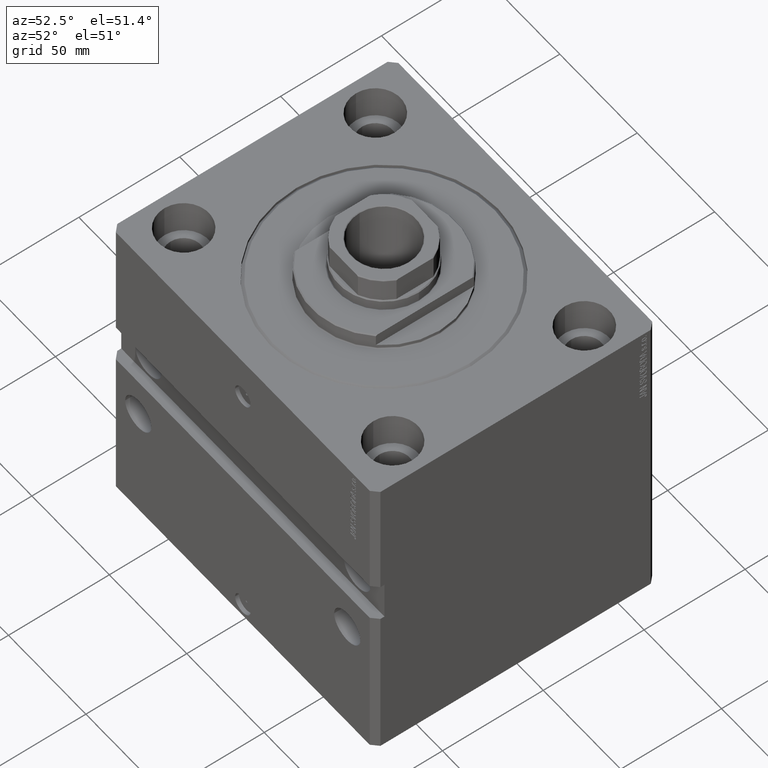
[diagram: clean part render]
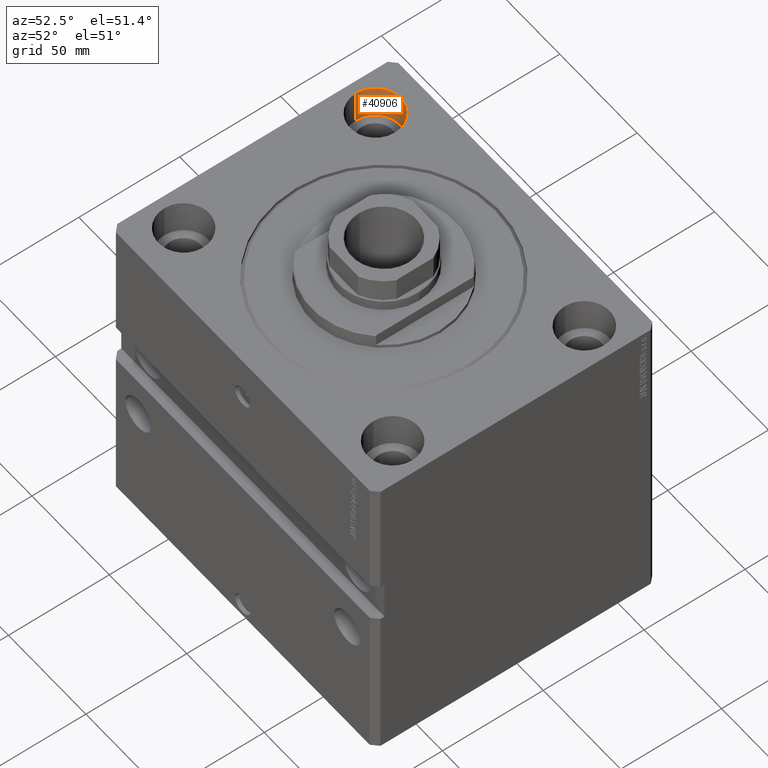
[diagram: same view with one face highlighted and labeled with its STEP entity id]
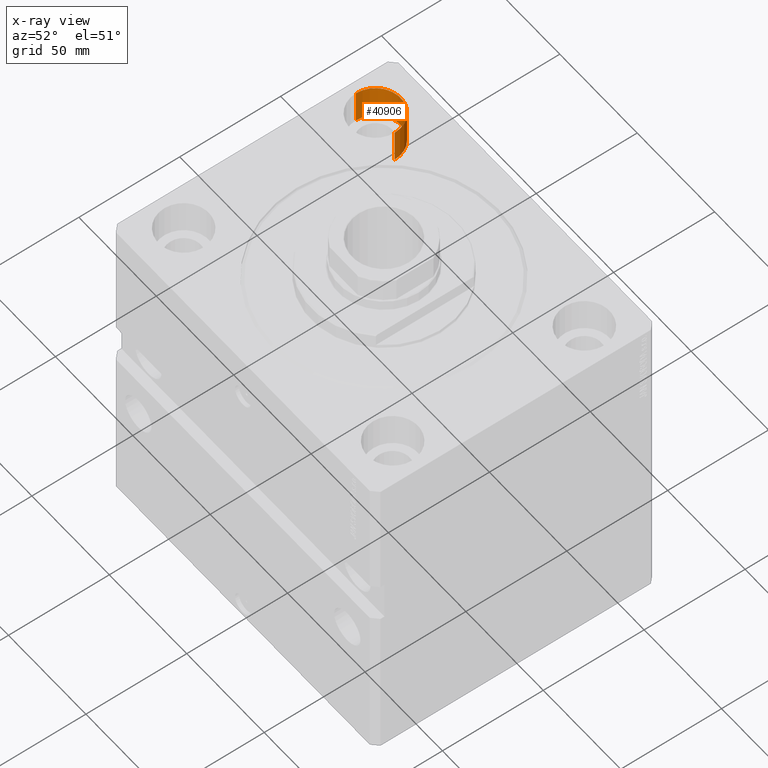
[diagram: x-ray of the same camera — body ghosted, the highlighted face saturated]
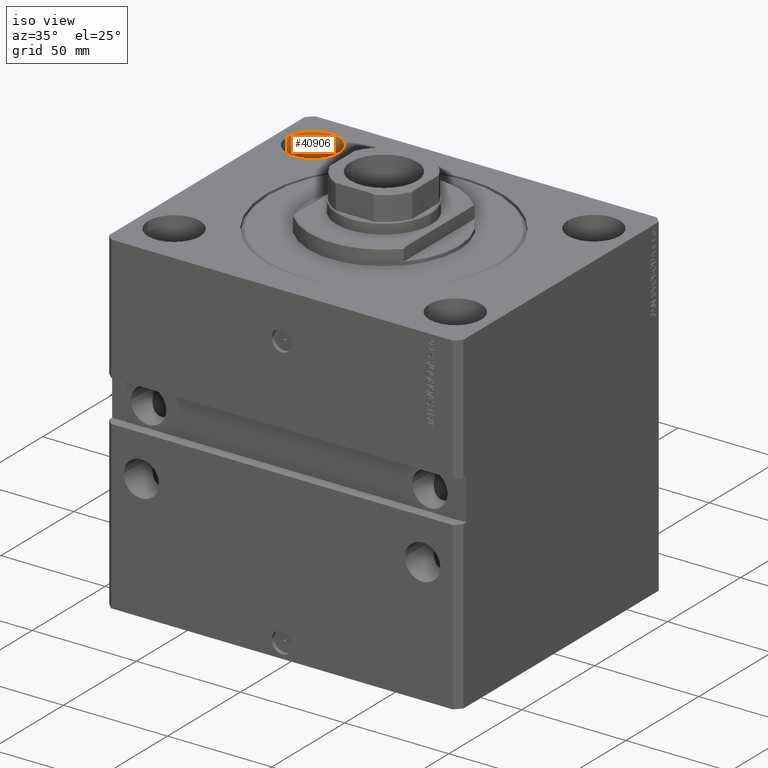
[diagram: same view with one face highlighted and labeled with its STEP entity id]
A machine part, auxiliary view. The second image highlights one B-rep face of the part: STEP entity #40906.
The next image is the same camera in x-ray: the body ghosted, the highlighted face saturated — about 0% of this face is hidden behind the body in this view.
A second angle (iso view) of the same face is appended — the face is thin or edge-on in the first view.
In plain terms, the highlighted cylindrical surface (edge-blend (fillet) strip) has radius 12.5 mm, axis along (0, 0, 1).
Its self-contained STEP definition (entity closure, byte-faithful):
#12 = DIRECTION ( 'NONE',  ( 0.000000000000000000, 0.000000000000000000, 1.000000000000000000 ) ) ;
#407 = VECTOR ( 'NONE', #35486, 1000.000000000000000 ) ;
#2018 = VERTEX_POINT ( 'NONE', #23377 ) ;
#3751 = CARTESIAN_POINT ( 'NONE',  ( -67.50000000000000000, 47.50000000000000000, -17.00000000000000000 ) ) ;
#6764 = EDGE_CURVE ( 'NONE', #18295, #2018, #32450, .T. ) ;
#8084 = EDGE_LOOP ( 'NONE', ( #30978, #16448, #8345, #26899 ) ) ;
#8345 = ORIENTED_EDGE ( 'NONE', *, *, #6764, .T. ) ;
#8869 = CARTESIAN_POINT ( 'NONE',  ( -80.00000000000000000, 47.50000000000000000, -17.00000000000000000 ) ) ;
#8947 = CARTESIAN_POINT ( 'NONE',  ( -80.00000000000000000, 47.50000000000000000, -17.00000000000000000 ) ) ;
#9671 = CARTESIAN_POINT ( 'NONE',  ( -80.00000000000000000, 47.50000000000000000, 0.000000000000000000 ) ) ;
#10636 = CARTESIAN_POINT ( 'NONE',  ( -67.50000000000000000, 47.50000000000000000, 0.000000000000000000 ) ) ;
#10859 = DIRECTION ( 'NONE',  ( 1.000000000000000000, 0.000000000000000000, 0.000000000000000000 ) ) ;
#13112 = EDGE_CURVE ( 'NONE', #46112, #33100, #37618, .T. ) ;
#14294 = DIRECTION ( 'NONE',  ( 1.000000000000000000, 0.000000000000000000, 0.000000000000000000 ) ) ;
#14806 = VECTOR ( 'NONE', #16808, 1000.000000000000000 ) ;
#16448 = ORIENTED_EDGE ( 'NONE', *, *, #26477, .F. ) ;
#16808 = DIRECTION ( 'NONE',  ( -0.000000000000000000, -0.000000000000000000, 1.000000000000000000 ) ) ;
#17645 = DIRECTION ( 'NONE',  ( 0.000000000000000000, 0.000000000000000000, 1.000000000000000000 ) ) ;
#17789 = CARTESIAN_POINT ( 'NONE',  ( -67.50000000000000000, 47.50000000000000000, -17.00000000000000000 ) ) ;
#18017 = DIRECTION ( 'NONE',  ( -0.000000000000000000, -0.000000000000000000, 1.000000000000000000 ) ) ;
#18295 = VERTEX_POINT ( 'NONE', #23816 ) ;
#18731 = AXIS2_PLACEMENT_3D ( 'NONE', #3751, #18017, #32286 ) ;
#21520 = CYLINDRICAL_SURFACE ( 'NONE', #18731, 12.49999999999999645 ) ;
#23377 = CARTESIAN_POINT ( 'NONE',  ( -55.00000000000000711, 47.50000000000000000, 0.000000000000000000 ) ) ;
#23816 = CARTESIAN_POINT ( 'NONE',  ( -55.00000000000000711, 47.50000000000000000, -17.00000000000000000 ) ) ;
#24085 = EDGE_CURVE ( 'NONE', #2018, #33100, #44815, .T. ) ;
#24685 = AXIS2_PLACEMENT_3D ( 'NONE', #10636, #17645, #10859 ) ;
#26477 = EDGE_CURVE ( 'NONE', #18295, #46112, #44563, .T. ) ;
#26653 = AXIS2_PLACEMENT_3D ( 'NONE', #17789, #12, #14294 ) ;
#26899 = ORIENTED_EDGE ( 'NONE', *, *, #24085, .T. ) ;
#30978 = ORIENTED_EDGE ( 'NONE', *, *, #13112, .F. ) ;
#32047 = FACE_OUTER_BOUND ( 'NONE', #8084, .T. ) ;
#32286 = DIRECTION ( 'NONE',  ( 1.000000000000000000, 0.000000000000000000, 0.000000000000000000 ) ) ;
#32450 = LINE ( 'NONE', #35727, #407 ) ;
#33100 = VERTEX_POINT ( 'NONE', #9671 ) ;
#35486 = DIRECTION ( 'NONE',  ( -0.000000000000000000, -0.000000000000000000, 1.000000000000000000 ) ) ;
#35727 = CARTESIAN_POINT ( 'NONE',  ( -55.00000000000000711, 47.50000000000000000, -17.00000000000000000 ) ) ;
#37618 = LINE ( 'NONE', #8869, #14806 ) ;
#40906 = ADVANCED_FACE ( 'NONE', ( #32047 ), #21520, .F. ) ;
#44563 = CIRCLE ( 'NONE', #26653, 12.49999999999999645 ) ;
#44815 = CIRCLE ( 'NONE', #24685, 12.49999999999999645 ) ;
#46112 = VERTEX_POINT ( 'NONE', #8947 ) ;